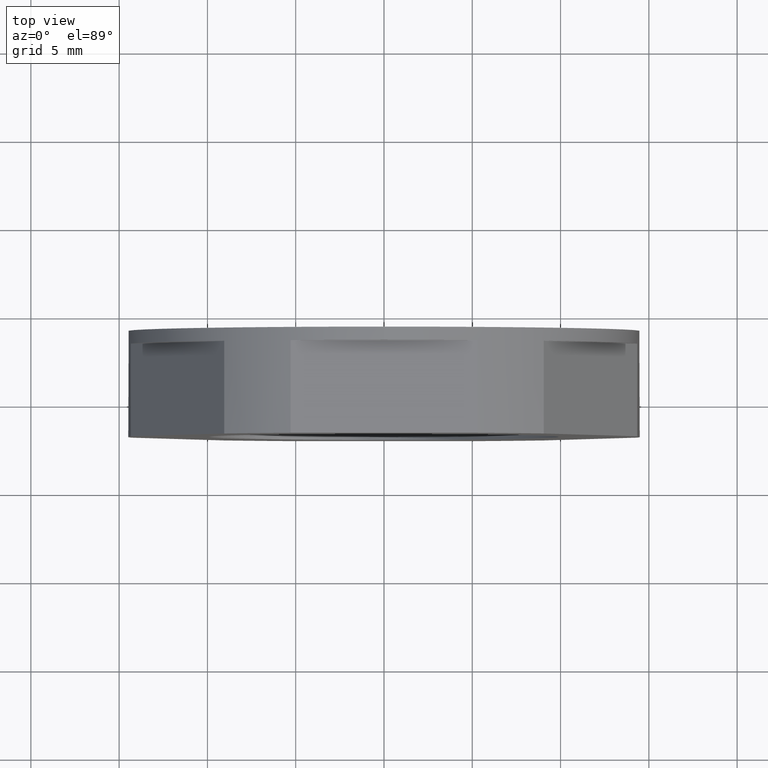
[diagram: clean part render]
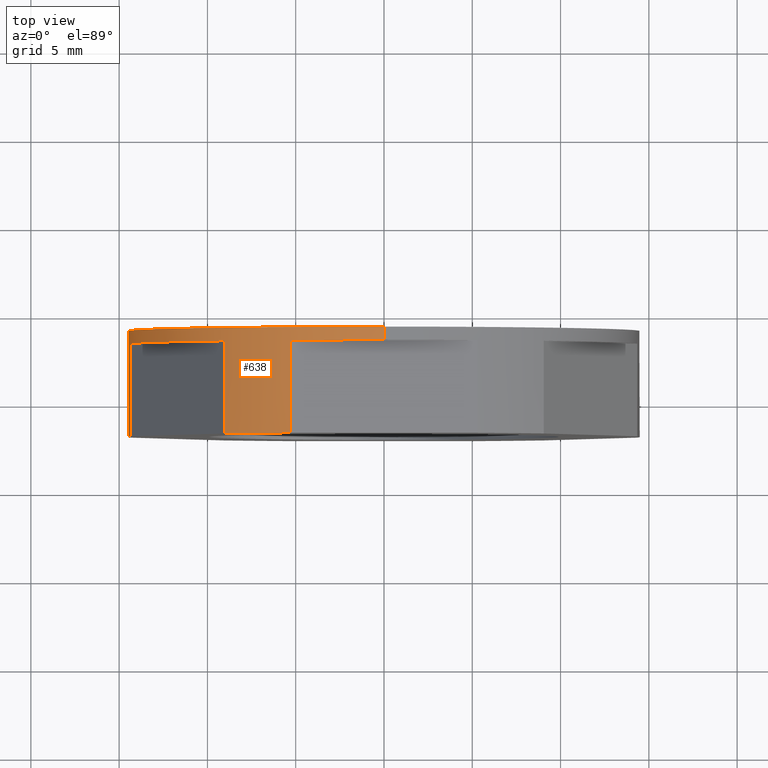
[diagram: same view with one face highlighted and labeled with its STEP entity id]
A machine part, top view. The second image highlights one B-rep face of the part: STEP entity #638.
In plain terms, the highlighted cylindrical surface (partial cylindrical patch) has radius 14.5 mm, axis along (-0, -1, -0).
Its self-contained STEP definition (entity closure, byte-faithful):
#167 = CARTESIAN_POINT ( 'NONE',  ( -9.045591640025330400, -11.70000000000000300, -11.33257569495584100 ) ) ;
#195 = CARTESIAN_POINT ( 'NONE',  ( 1.775737858763662000E-015, -10.95000000000000100, 14.50000000000000000 ) ) ;
#204 = CARTESIAN_POINT ( 'NONE',  ( -5.291502622129186800, -11.70000000000000300, 13.49999999999999800 ) ) ;
#212 = CARTESIAN_POINT ( 'NONE',  ( -9.045591640025342900, -16.94999999999999900, 11.33257569495583400 ) ) ;
#216 = CARTESIAN_POINT ( 'NONE',  ( -14.33709426215451700, -16.94999999999999900, -2.167424305044142400 ) ) ;
#217 = CARTESIAN_POINT ( 'NONE',  ( -5.291502622129190300, -16.94999999999999900, -13.49999999999999600 ) ) ;
#218 = CARTESIAN_POINT ( 'NONE',  ( -9.045591640025335800, -16.94999999999999900, -11.33257569495583900 ) ) ;
#223 = CARTESIAN_POINT ( 'NONE',  ( -14.33709426215451200, -11.70000000000000300, 2.167424305044172600 ) ) ;
#225 = CARTESIAN_POINT ( 'NONE',  ( -5.291502622129185900, -16.94999999999999900, 13.49999999999999800 ) ) ;
#226 = CARTESIAN_POINT ( 'NONE',  ( 1.775737858763662000E-015, -11.70000000000000300, 14.50000000000000000 ) ) ;
#240 = CARTESIAN_POINT ( 'NONE',  ( 0.0000000000000000000, -11.70000000000000300, -14.50000000000000000 ) ) ;
#245 = CARTESIAN_POINT ( 'NONE',  ( -5.291502622129188500, -11.70000000000000300, -13.49999999999999800 ) ) ;
#246 = CARTESIAN_POINT ( 'NONE',  ( -14.33709426215451500, -11.70000000000000300, -2.167424305044147700 ) ) ;
#250 = CARTESIAN_POINT ( 'NONE',  ( -9.045591640025344700, -11.70000000000000300, 11.33257569495583200 ) ) ;
#251 = CARTESIAN_POINT ( 'NONE',  ( 0.0000000000000000000, -10.95000000000000100, -14.50000000000000000 ) ) ;
#257 = CARTESIAN_POINT ( 'NONE',  ( -14.33709426215451200, -16.94999999999999900, 2.167424305044173500 ) ) ;
#418 = CYLINDRICAL_SURFACE ( 'NONE', #1499, 14.50000000000000000 ) ;
#427 = DIRECTION ( 'NONE',  ( -0.0000000000000000000, -1.000000000000000000, -0.0000000000000000000 ) ) ;
#440 = FACE_OUTER_BOUND ( 'NONE', #715, .T. ) ;
#444 = DIRECTION ( 'NONE',  ( 0.0000000000000000000, 0.0000000000000000000, -1.000000000000000000 ) ) ;
#447 = CARTESIAN_POINT ( 'NONE',  ( 0.0000000000000000000, -5.949999999999998400, 0.0000000000000000000 ) ) ;
#547 = EDGE_CURVE ( 'NONE', #739, #750, #979, .T. ) ;
#567 = EDGE_CURVE ( 'NONE', #815, #756, #1110, .T. ) ;
#568 = EDGE_CURVE ( 'NONE', #739, #815, #1464, .T. ) ;
#577 = EDGE_CURVE ( 'NONE', #766, #760, #1163, .T. ) ;
#578 = EDGE_CURVE ( 'NONE', #771, #730, #1147, .T. ) ;
#584 = EDGE_CURVE ( 'NONE', #760, #771, #1463, .T. ) ;
#587 = EDGE_CURVE ( 'NONE', #756, #766, #1469, .T. ) ;
#590 = EDGE_CURVE ( 'NONE', #792, #737, #2411, .T. ) ;
#591 = EDGE_CURVE ( 'NONE', #754, #792, #1453, .T. ) ;
#593 = EDGE_CURVE ( 'NONE', #759, #754, #1556, .T. ) ;
#600 = EDGE_CURVE ( 'NONE', #730, #786, #1476, .T. ) ;
#605 = EDGE_CURVE ( 'NONE', #758, #759, #1473, .T. ) ;
#621 = EDGE_CURVE ( 'NONE', #748, #746, #1531, .T. ) ;
#622 = EDGE_CURVE ( 'NONE', #746, #758, #1867, .T. ) ;
#627 = EDGE_CURVE ( 'NONE', #737, #750, #1511, .T. ) ;
#631 = EDGE_CURVE ( 'NONE', #786, #748, #1888, .T. ) ;
#638 = ADVANCED_FACE ( 'NONE', ( #440 ), #418, .T. ) ;
#715 = EDGE_LOOP ( 'NONE', ( #870, #910, #871, #857, #900, #885, #887, #872, #909, #903, #864, #891, #856, #904, #858, #912 ) ) ;
#730 = VERTEX_POINT ( 'NONE', #167 ) ;
#737 = VERTEX_POINT ( 'NONE', #204 ) ;
#739 = VERTEX_POINT ( 'NONE', #195 ) ;
#746 = VERTEX_POINT ( 'NONE', #257 ) ;
#748 = VERTEX_POINT ( 'NONE', #216 ) ;
#750 = VERTEX_POINT ( 'NONE', #226 ) ;
#754 = VERTEX_POINT ( 'NONE', #212 ) ;
#756 = VERTEX_POINT ( 'NONE', #240 ) ;
#758 = VERTEX_POINT ( 'NONE', #223 ) ;
#759 = VERTEX_POINT ( 'NONE', #250 ) ;
#760 = VERTEX_POINT ( 'NONE', #217 ) ;
#766 = VERTEX_POINT ( 'NONE', #245 ) ;
#771 = VERTEX_POINT ( 'NONE', #218 ) ;
#786 = VERTEX_POINT ( 'NONE', #246 ) ;
#792 = VERTEX_POINT ( 'NONE', #225 ) ;
#815 = VERTEX_POINT ( 'NONE', #251 ) ;
#856 = ORIENTED_EDGE ( 'NONE', *, *, #593, .T. ) ;
#857 = ORIENTED_EDGE ( 'NONE', *, *, #587, .T. ) ;
#858 = ORIENTED_EDGE ( 'NONE', *, *, #590, .T. ) ;
#864 = ORIENTED_EDGE ( 'NONE', *, *, #622, .T. ) ;
#870 = ORIENTED_EDGE ( 'NONE', *, *, #547, .F. ) ;
#871 = ORIENTED_EDGE ( 'NONE', *, *, #567, .T. ) ;
#872 = ORIENTED_EDGE ( 'NONE', *, *, #600, .T. ) ;
#885 = ORIENTED_EDGE ( 'NONE', *, *, #584, .T. ) ;
#887 = ORIENTED_EDGE ( 'NONE', *, *, #578, .T. ) ;
#891 = ORIENTED_EDGE ( 'NONE', *, *, #605, .T. ) ;
#900 = ORIENTED_EDGE ( 'NONE', *, *, #577, .T. ) ;
#903 = ORIENTED_EDGE ( 'NONE', *, *, #621, .T. ) ;
#904 = ORIENTED_EDGE ( 'NONE', *, *, #591, .T. ) ;
#909 = ORIENTED_EDGE ( 'NONE', *, *, #631, .T. ) ;
#910 = ORIENTED_EDGE ( 'NONE', *, *, #568, .T. ) ;
#912 = ORIENTED_EDGE ( 'NONE', *, *, #627, .T. ) ;
#976 = CARTESIAN_POINT ( 'NONE',  ( 1.775737858763662000E-015, -5.949999999999998400, 14.50000000000000000 ) ) ;
#979 = LINE ( 'NONE', #976, #1439 ) ;
#980 = DIRECTION ( 'NONE',  ( -0.0000000000000000000, -1.000000000000000000, -0.0000000000000000000 ) ) ;
#1058 = DIRECTION ( 'NONE',  ( -0.0000000000000000000, -1.000000000000000000, -0.0000000000000000000 ) ) ;
#1060 = DIRECTION ( 'NONE',  ( 0.0000000000000000000, 0.0000000000000000000, -1.000000000000000000 ) ) ;
#1063 = CARTESIAN_POINT ( 'NONE',  ( 0.0000000000000000000, -10.95000000000000100, 0.0000000000000000000 ) ) ;
#1082 = CARTESIAN_POINT ( 'NONE',  ( 0.0000000000000000000, -5.949999999999998400, -14.50000000000000000 ) ) ;
#1091 = DIRECTION ( 'NONE',  ( -0.0000000000000000000, -1.000000000000000000, -0.0000000000000000000 ) ) ;
#1110 = LINE ( 'NONE', #1082, #1482 ) ;
#1116 = DIRECTION ( 'NONE',  ( -0.0000000000000000000, -1.000000000000000000, -0.0000000000000000000 ) ) ;
#1141 = CARTESIAN_POINT ( 'NONE',  ( -5.291502622129190300, -5.949999999999998400, -13.49999999999999600 ) ) ;
#1147 = LINE ( 'NONE', #1179, #1468 ) ;
#1163 = LINE ( 'NONE', #1141, #1472 ) ;
#1165 = DIRECTION ( 'NONE',  ( 0.0000000000000000000, 0.0000000000000000000, -1.000000000000000000 ) ) ;
#1172 = CARTESIAN_POINT ( 'NONE',  ( 0.0000000000000000000, -16.94999999999999900, 0.0000000000000000000 ) ) ;
#1174 = DIRECTION ( 'NONE',  ( -0.0000000000000000000, 1.000000000000000000, -0.0000000000000000000 ) ) ;
#1179 = CARTESIAN_POINT ( 'NONE',  ( -9.045591640025335800, -5.949999999999998400, -11.33257569495583900 ) ) ;
#1183 = DIRECTION ( 'NONE',  ( 0.0000000000000000000, 1.000000000000000000, 0.0000000000000000000 ) ) ;
#1439 = VECTOR ( 'NONE', #980, 1000.000000000000000 ) ;
#1452 = AXIS2_PLACEMENT_3D ( 'NONE', #2415, #2405, #2403 ) ;
#1453 = CIRCLE ( 'NONE', #1461, 14.50000000000000000 ) ;
#1456 = VECTOR ( 'NONE', #1562, 1000.000000000000000 ) ;
#1461 = AXIS2_PLACEMENT_3D ( 'NONE', #2409, #2372, #2370 ) ;
#1463 = CIRCLE ( 'NONE', #1485, 14.50000000000000000 ) ;
#1464 = CIRCLE ( 'NONE', #1481, 14.50000000000000000 ) ;
#1468 = VECTOR ( 'NONE', #1183, 1000.000000000000000 ) ;
#1469 = CIRCLE ( 'NONE', #1452, 14.50000000000000000 ) ;
#1472 = VECTOR ( 'NONE', #1116, 1000.000000000000000 ) ;
#1473 = CIRCLE ( 'NONE', #1510, 14.50000000000000000 ) ;
#1476 = CIRCLE ( 'NONE', #1477, 14.50000000000000000 ) ;
#1477 = AXIS2_PLACEMENT_3D ( 'NONE', #1608, #1609, #1687 ) ;
#1481 = AXIS2_PLACEMENT_3D ( 'NONE', #1063, #1091, #1060 ) ;
#1482 = VECTOR ( 'NONE', #1058, 1000.000000000000000 ) ;
#1485 = AXIS2_PLACEMENT_3D ( 'NONE', #1172, #1174, #1165 ) ;
#1487 = VECTOR ( 'NONE', #2417, 1000.000000000000000 ) ;
#1495 = AXIS2_PLACEMENT_3D ( 'NONE', #1879, #1860, #1868 ) ;
#1499 = AXIS2_PLACEMENT_3D ( 'NONE', #447, #427, #444 ) ;
#1510 = AXIS2_PLACEMENT_3D ( 'NONE', #1688, #1685, #1690 ) ;
#1511 = CIRCLE ( 'NONE', #1495, 14.50000000000000000 ) ;
#1514 = AXIS2_PLACEMENT_3D ( 'NONE', #1853, #1863, #1842 ) ;
#1531 = CIRCLE ( 'NONE', #1514, 14.50000000000000000 ) ;
#1536 = VECTOR ( 'NONE', #1930, 1000.000000000000000 ) ;
#1539 = VECTOR ( 'NONE', #1843, 1000.000000000000000 ) ;
#1556 = LINE ( 'NONE', #1586, #1456 ) ;
#1562 = DIRECTION ( 'NONE',  ( -0.0000000000000000000, -1.000000000000000000, -0.0000000000000000000 ) ) ;
#1586 = CARTESIAN_POINT ( 'NONE',  ( -9.045591640025342900, -5.949999999999998400, 11.33257569495583400 ) ) ;
#1608 = CARTESIAN_POINT ( 'NONE',  ( 0.0000000000000000000, -11.70000000000000300, 0.0000000000000000000 ) ) ;
#1609 = DIRECTION ( 'NONE',  ( 0.0000000000000000000, 1.000000000000000000, 0.0000000000000000000 ) ) ;
#1685 = DIRECTION ( 'NONE',  ( 0.0000000000000000000, 1.000000000000000000, 0.0000000000000000000 ) ) ;
#1687 = DIRECTION ( 'NONE',  ( 0.0000000000000000000, 0.0000000000000000000, -1.000000000000000000 ) ) ;
#1688 = CARTESIAN_POINT ( 'NONE',  ( 0.0000000000000000000, -11.70000000000000300, 0.0000000000000000000 ) ) ;
#1690 = DIRECTION ( 'NONE',  ( 0.0000000000000000000, 0.0000000000000000000, -1.000000000000000000 ) ) ;
#1842 = DIRECTION ( 'NONE',  ( 0.0000000000000000000, 0.0000000000000000000, -1.000000000000000000 ) ) ;
#1843 = DIRECTION ( 'NONE',  ( 0.0000000000000000000, 1.000000000000000000, 0.0000000000000000000 ) ) ;
#1853 = CARTESIAN_POINT ( 'NONE',  ( 0.0000000000000000000, -16.94999999999999900, 0.0000000000000000000 ) ) ;
#1854 = CARTESIAN_POINT ( 'NONE',  ( -14.33709426215451200, -5.949999999999998400, 2.167424305044173500 ) ) ;
#1860 = DIRECTION ( 'NONE',  ( 0.0000000000000000000, 1.000000000000000000, 0.0000000000000000000 ) ) ;
#1863 = DIRECTION ( 'NONE',  ( -0.0000000000000000000, 1.000000000000000000, -0.0000000000000000000 ) ) ;
#1867 = LINE ( 'NONE', #1854, #1539 ) ;
#1868 = DIRECTION ( 'NONE',  ( 0.0000000000000000000, 0.0000000000000000000, -1.000000000000000000 ) ) ;
#1879 = CARTESIAN_POINT ( 'NONE',  ( 0.0000000000000000000, -11.70000000000000300, 0.0000000000000000000 ) ) ;
#1888 = LINE ( 'NONE', #1911, #1536 ) ;
#1911 = CARTESIAN_POINT ( 'NONE',  ( -14.33709426215451700, -5.949999999999998400, -2.167424305044142400 ) ) ;
#1930 = DIRECTION ( 'NONE',  ( -0.0000000000000000000, -1.000000000000000000, -0.0000000000000000000 ) ) ;
#2370 = DIRECTION ( 'NONE',  ( 3.552713678800500900E-015, 0.0000000000000000000, -1.000000000000000000 ) ) ;
#2372 = DIRECTION ( 'NONE',  ( -0.0000000000000000000, 1.000000000000000000, -0.0000000000000000000 ) ) ;
#2383 = CARTESIAN_POINT ( 'NONE',  ( -5.291502622129185900, -5.949999999999998400, 13.49999999999999800 ) ) ;
#2403 = DIRECTION ( 'NONE',  ( 0.0000000000000000000, 0.0000000000000000000, -1.000000000000000000 ) ) ;
#2405 = DIRECTION ( 'NONE',  ( 0.0000000000000000000, 1.000000000000000000, 0.0000000000000000000 ) ) ;
#2409 = CARTESIAN_POINT ( 'NONE',  ( 0.0000000000000000000, -16.94999999999999900, 0.0000000000000000000 ) ) ;
#2411 = LINE ( 'NONE', #2383, #1487 ) ;
#2415 = CARTESIAN_POINT ( 'NONE',  ( 0.0000000000000000000, -11.70000000000000300, 0.0000000000000000000 ) ) ;
#2417 = DIRECTION ( 'NONE',  ( 0.0000000000000000000, 1.000000000000000000, 0.0000000000000000000 ) ) ;